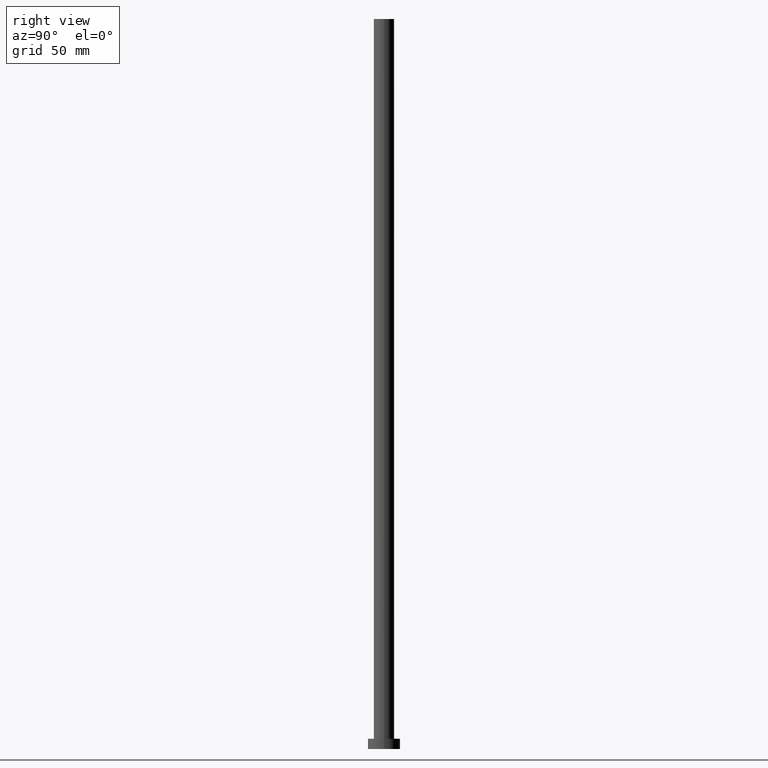
[diagram: clean part render]
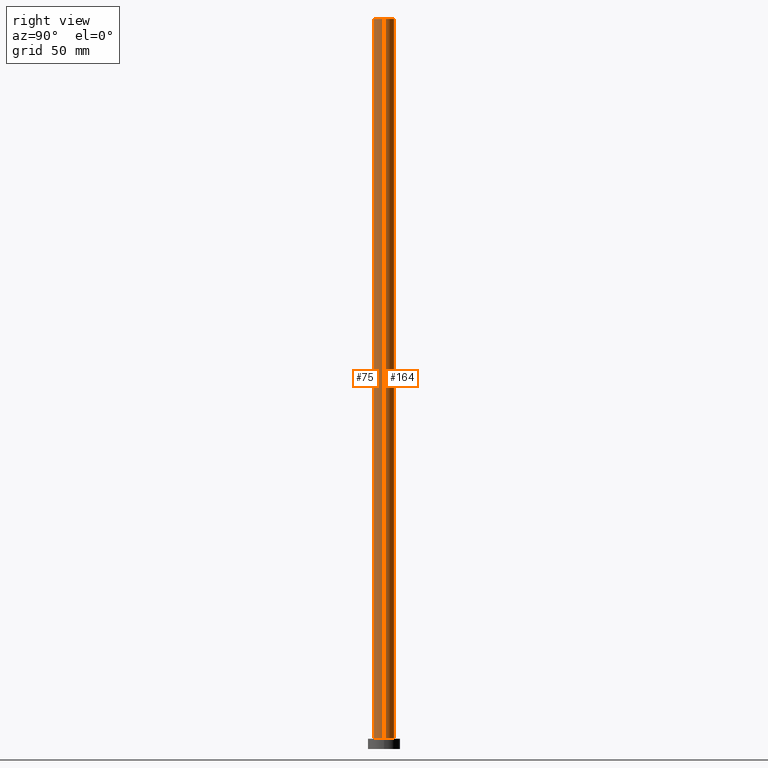
[diagram: same view with one multi-face feature highlighted, each face labeled with its STEP entity id]
A machine part, right view. The highlighted faces form ONE feature: a constant-radius fillet chain: 2 tangent blend faces with common blend radius 7 mm. The faces share edges in the B-rep.
Their STEP definitions:
[1] entity #75 (Cylinder):
#6 = EDGE_CURVE ( 'NONE', #158, #255, #165, .T. ) ;
#29 = DIRECTION ( 'NONE',  ( 0.000000000000000000, 0.000000000000000000, 1.000000000000000000 ) ) ;
#33 = CARTESIAN_POINT ( 'NONE',  ( 0.000000000000000000, 0.000000000000000000, 7.000000000000000000 ) ) ;
#34 = EDGE_CURVE ( 'NONE', #45, #221, #47, .T. ) ;
#36 = ORIENTED_EDGE ( 'NONE', *, *, #62, .T. ) ;
#42 = CYLINDRICAL_SURFACE ( 'NONE', #105, 7.000000000000000888 ) ;
#45 = VERTEX_POINT ( 'NONE', #61 ) ;
#47 = CIRCLE ( 'NONE', #67, 7.000000000000000888 ) ;
#51 = CARTESIAN_POINT ( 'NONE',  ( 7.000000000000000888, 8.572527594031474176E-16, 500.0000000000000000 ) ) ;
#53 = AXIS2_PLACEMENT_3D ( 'NONE', #33, #216, #214 ) ;
#61 = CARTESIAN_POINT ( 'NONE',  ( -7.000000000000000888, 0.000000000000000000, 500.0000000000000000 ) ) ;
#62 = EDGE_CURVE ( 'NONE', #45, #158, #140, .T. ) ;
#67 = AXIS2_PLACEMENT_3D ( 'NONE', #241, #29, #115 ) ;
#69 = DIRECTION ( 'NONE',  ( -1.000000000000000000, 0.000000000000000000, 0.000000000000000000 ) ) ;
#72 = LINE ( 'NONE', #148, #215 ) ;
#75 = ADVANCED_FACE ( 'NONE', ( #242 ), #42, .T. ) ;
#102 = CARTESIAN_POINT ( 'NONE',  ( 0.000000000000000000, 0.000000000000000000, 500.0000000000000000 ) ) ;
#105 = AXIS2_PLACEMENT_3D ( 'NONE', #102, #206, #69 ) ;
#115 = DIRECTION ( 'NONE',  ( 1.000000000000000000, 0.000000000000000000, 0.000000000000000000 ) ) ;
#119 = DIRECTION ( 'NONE',  ( -0.000000000000000000, -0.000000000000000000, -1.000000000000000000 ) ) ;
#136 = ORIENTED_EDGE ( 'NONE', *, *, #152, .F. ) ;
#140 = LINE ( 'NONE', #234, #228 ) ;
#142 = EDGE_LOOP ( 'NONE', ( #136, #173, #36, #181 ) ) ;
#146 = CARTESIAN_POINT ( 'NONE',  ( 7.000000000000000888, 8.572527594031474176E-16, 7.000000000000000000 ) ) ;
#148 = CARTESIAN_POINT ( 'NONE',  ( 7.000000000000000888, 8.572527594031474176E-16, 500.0000000000000000 ) ) ;
#152 = EDGE_CURVE ( 'NONE', #221, #255, #72, .T. ) ;
#158 = VERTEX_POINT ( 'NONE', #169 ) ;
#165 = CIRCLE ( 'NONE', #53, 7.000000000000000888 ) ;
#169 = CARTESIAN_POINT ( 'NONE',  ( -7.000000000000000888, 0.000000000000000000, 7.000000000000000000 ) ) ;
#173 = ORIENTED_EDGE ( 'NONE', *, *, #34, .F. ) ;
#181 = ORIENTED_EDGE ( 'NONE', *, *, #6, .T. ) ;
#206 = DIRECTION ( 'NONE',  ( -0.000000000000000000, -0.000000000000000000, -1.000000000000000000 ) ) ;
#214 = DIRECTION ( 'NONE',  ( 1.000000000000000000, 0.000000000000000000, 0.000000000000000000 ) ) ;
#215 = VECTOR ( 'NONE', #248, 1000.000000000000000 ) ;
#216 = DIRECTION ( 'NONE',  ( 0.000000000000000000, 0.000000000000000000, 1.000000000000000000 ) ) ;
#221 = VERTEX_POINT ( 'NONE', #51 ) ;
#228 = VECTOR ( 'NONE', #119, 1000.000000000000000 ) ;
#234 = CARTESIAN_POINT ( 'NONE',  ( -7.000000000000000888, 0.000000000000000000, 500.0000000000000000 ) ) ;
#241 = CARTESIAN_POINT ( 'NONE',  ( 0.000000000000000000, 0.000000000000000000, 500.0000000000000000 ) ) ;
#242 = FACE_OUTER_BOUND ( 'NONE', #142, .T. ) ;
#248 = DIRECTION ( 'NONE',  ( -0.000000000000000000, -0.000000000000000000, -1.000000000000000000 ) ) ;
#255 = VERTEX_POINT ( 'NONE', #146 ) ;
[2] entity #164 (Cylinder):
#12 = EDGE_LOOP ( 'NONE', ( #121, #17, #37, #95 ) ) ;
#13 = CARTESIAN_POINT ( 'NONE',  ( 0.000000000000000000, 0.000000000000000000, 500.0000000000000000 ) ) ;
#17 = ORIENTED_EDGE ( 'NONE', *, *, #152, .T. ) ;
#37 = ORIENTED_EDGE ( 'NONE', *, *, #185, .T. ) ;
#45 = VERTEX_POINT ( 'NONE', #61 ) ;
#50 = EDGE_CURVE ( 'NONE', #221, #45, #162, .T. ) ;
#51 = CARTESIAN_POINT ( 'NONE',  ( 7.000000000000000888, 8.572527594031474176E-16, 500.0000000000000000 ) ) ;
#52 = CARTESIAN_POINT ( 'NONE',  ( 0.000000000000000000, 0.000000000000000000, 500.0000000000000000 ) ) ;
#61 = CARTESIAN_POINT ( 'NONE',  ( -7.000000000000000888, 0.000000000000000000, 500.0000000000000000 ) ) ;
#62 = EDGE_CURVE ( 'NONE', #45, #158, #140, .T. ) ;
#72 = LINE ( 'NONE', #148, #215 ) ;
#73 = FACE_OUTER_BOUND ( 'NONE', #12, .T. ) ;
#76 = DIRECTION ( 'NONE',  ( 1.000000000000000000, 0.000000000000000000, 0.000000000000000000 ) ) ;
#93 = DIRECTION ( 'NONE',  ( 0.000000000000000000, 0.000000000000000000, 1.000000000000000000 ) ) ;
#95 = ORIENTED_EDGE ( 'NONE', *, *, #62, .F. ) ;
#112 = AXIS2_PLACEMENT_3D ( 'NONE', #52, #149, #168 ) ;
#119 = DIRECTION ( 'NONE',  ( -0.000000000000000000, -0.000000000000000000, -1.000000000000000000 ) ) ;
#121 = ORIENTED_EDGE ( 'NONE', *, *, #50, .F. ) ;
#128 = CYLINDRICAL_SURFACE ( 'NONE', #112, 7.000000000000000888 ) ;
#140 = LINE ( 'NONE', #234, #228 ) ;
#146 = CARTESIAN_POINT ( 'NONE',  ( 7.000000000000000888, 8.572527594031474176E-16, 7.000000000000000000 ) ) ;
#148 = CARTESIAN_POINT ( 'NONE',  ( 7.000000000000000888, 8.572527594031474176E-16, 500.0000000000000000 ) ) ;
#149 = DIRECTION ( 'NONE',  ( -0.000000000000000000, -0.000000000000000000, -1.000000000000000000 ) ) ;
#152 = EDGE_CURVE ( 'NONE', #221, #255, #72, .T. ) ;
#158 = VERTEX_POINT ( 'NONE', #169 ) ;
#162 = CIRCLE ( 'NONE', #250, 7.000000000000000888 ) ;
#164 = ADVANCED_FACE ( 'NONE', ( #73 ), #128, .T. ) ;
#168 = DIRECTION ( 'NONE',  ( -1.000000000000000000, 0.000000000000000000, 0.000000000000000000 ) ) ;
#169 = CARTESIAN_POINT ( 'NONE',  ( -7.000000000000000888, 0.000000000000000000, 7.000000000000000000 ) ) ;
#175 = DIRECTION ( 'NONE',  ( 1.000000000000000000, 0.000000000000000000, 0.000000000000000000 ) ) ;
#185 = EDGE_CURVE ( 'NONE', #255, #158, #247, .T. ) ;
#211 = DIRECTION ( 'NONE',  ( 0.000000000000000000, 0.000000000000000000, 1.000000000000000000 ) ) ;
#215 = VECTOR ( 'NONE', #248, 1000.000000000000000 ) ;
#221 = VERTEX_POINT ( 'NONE', #51 ) ;
#225 = CARTESIAN_POINT ( 'NONE',  ( 0.000000000000000000, 0.000000000000000000, 7.000000000000000000 ) ) ;
#228 = VECTOR ( 'NONE', #119, 1000.000000000000000 ) ;
#231 = AXIS2_PLACEMENT_3D ( 'NONE', #225, #211, #76 ) ;
#234 = CARTESIAN_POINT ( 'NONE',  ( -7.000000000000000888, 0.000000000000000000, 500.0000000000000000 ) ) ;
#247 = CIRCLE ( 'NONE', #231, 7.000000000000000888 ) ;
#248 = DIRECTION ( 'NONE',  ( -0.000000000000000000, -0.000000000000000000, -1.000000000000000000 ) ) ;
#250 = AXIS2_PLACEMENT_3D ( 'NONE', #13, #93, #175 ) ;
#255 = VERTEX_POINT ( 'NONE', #146 ) ;